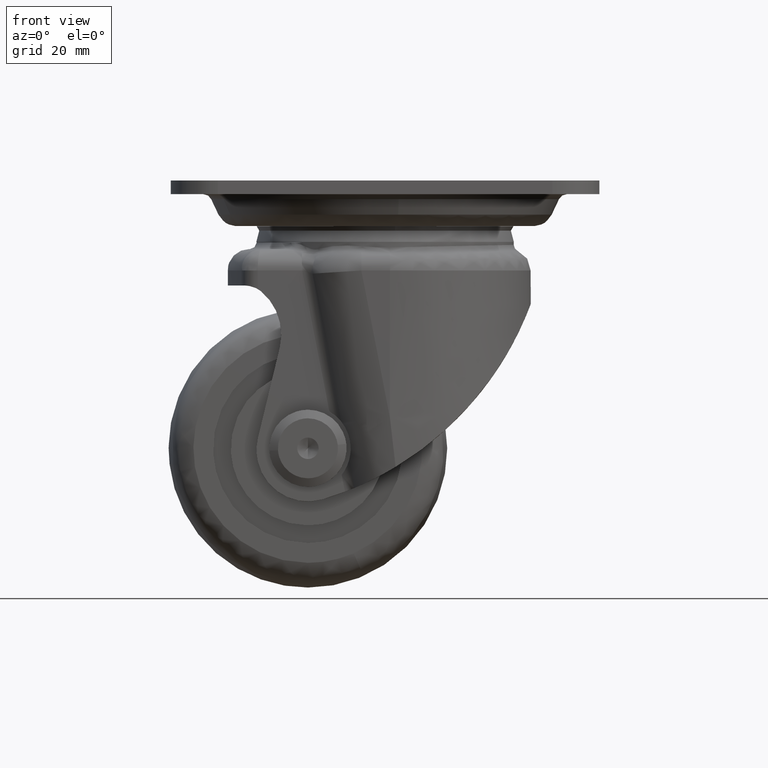
[diagram: clean part render]
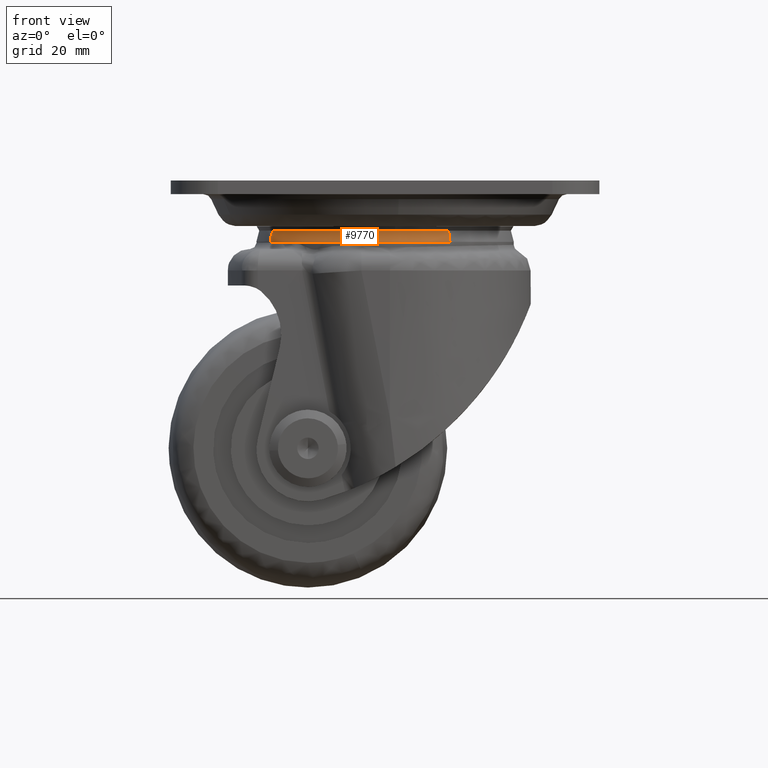
[diagram: same view with one face highlighted and labeled with its STEP entity id]
A machine part, front view. The second image highlights one B-rep face of the part: STEP entity #9770.
In plain terms, the highlighted face is a freeform B-spline surface patch.
Its self-contained STEP definition (entity closure, byte-faithful):
#8623=CARTESIAN_POINT('',(17.522155080071482,-28.369150680218020,-21.214511943242989));
#8624=VERTEX_POINT('',#8623);
#8630=CARTESIAN_POINT('',(-18.450119611879568,-13.618841556985190,-14.222210068228829));
#8631=VERTEX_POINT('',#8630);
#8632=CARTESIAN_POINT('',(17.522155080071482,-28.369150680218020,-21.214511943242986));
#8633=CARTESIAN_POINT('',(12.815073911622482,-30.037867283347744,-20.299548050586608));
#8634=CARTESIAN_POINT('',(7.831115067608019,-30.037867283347751,-19.330764589757401));
#8635=CARTESIAN_POINT('',(-10.251609450910713,-30.037867283347744,-15.815839007795516));
#8636=CARTESIAN_POINT('',(-18.450119611879572,-13.618841556985190,-14.222210068228833));
#8644=(BOUNDED_CURVE()B_SPLINE_CURVE(2,(#8632,#8633,#8634,#8635,#8636),.UNSPECIFIED.,.F.,.U.)B_SPLINE_CURVE_WITH_KNOTS((3,2,3),(0.694149837506889,0.750000000000000,0.922901120406277),.UNSPECIFIED.)CURVE()GEOMETRIC_REPRESENTATION_ITEM()RATIONAL_B_SPLINE_CURVE((0.898370270989290,0.934567464544553,1.0,0.797433737231013,0.875058944776187))REPRESENTATION_ITEM(''));
#8645=EDGE_CURVE('',#8624,#8631,#8644,.T.);
#8995=CARTESIAN_POINT('',(22.680942273216768,-25.950416948612851,-22.217278592617820));
#8996=VERTEX_POINT('',#8995);
#9010=CARTESIAN_POINT('',(22.680942273216772,-25.950416948612851,-22.217278592617816));
#9011=CARTESIAN_POINT('',(20.216403535979293,-27.414007360947743,-21.738220790994404));
#9012=CARTESIAN_POINT('',(17.522155080071482,-28.369150680218020,-21.214511943242986));
#9020=(BOUNDED_CURVE()B_SPLINE_CURVE(2,(#9010,#9011,#9012),.UNSPECIFIED.,.F.,.U.)B_SPLINE_CURVE_WITH_KNOTS((3,3),(0.664086837571461,0.694149837506889),.UNSPECIFIED.)CURVE()GEOMETRIC_REPRESENTATION_ITEM()RATIONAL_B_SPLINE_CURVE((0.867872643618802,0.878886062189562,0.898370270989290))REPRESENTATION_ITEM(''));
#9021=EDGE_CURVE('',#8996,#8624,#9020,.T.);
#9644=CARTESIAN_POINT('',(-17.355926881172810,-13.310685288560920,-11.767984731102899));
#9645=VERTEX_POINT('',#9644);
#9678=CARTESIAN_POINT('',(22.844454189801230,-25.363231642255219,-19.582147231044321));
#9679=VERTEX_POINT('',#9678);
#9693=CARTESIAN_POINT('',(22.844454189801230,-25.363231642255219,-19.582147231044324));
#9694=CARTESIAN_POINT('',(22.927405313401270,-25.918438593163870,-20.851637699059577));
#9695=CARTESIAN_POINT('',(22.680942273216768,-25.950416948612844,-22.217278592617824));
#9703=(BOUNDED_CURVE()B_SPLINE_CURVE(2,(#9693,#9694,#9695),.UNSPECIFIED.,.F.,.U.)B_SPLINE_CURVE_WITH_KNOTS((3,3),(-1.414754485746490,-0.571800007673622),.UNSPECIFIED.)CURVE()GEOMETRIC_REPRESENTATION_ITEM()RATIONAL_B_SPLINE_CURVE((0.943403458383688,0.919505217478118,0.944178191307349))REPRESENTATION_ITEM(''));
#9704=EDGE_CURVE('',#9679,#8996,#9703,.T.);
#9710=CARTESIAN_POINT('',(-17.355926881172802,-13.310685288560913,-11.767984731102906));
#9711=CARTESIAN_POINT('',(-18.152971308367754,-13.602059238726248,-12.866421391930254));
#9712=CARTESIAN_POINT('',(-18.450119611879575,-13.618841556985188,-14.222210068228826));
#9720=(BOUNDED_CURVE()B_SPLINE_CURVE(2,(#9710,#9711,#9712),.UNSPECIFIED.,.F.,.U.)B_SPLINE_CURVE_WITH_KNOTS((3,3),(-1.414754485685338,-0.571800007674423),.UNSPECIFIED.)CURVE()GEOMETRIC_REPRESENTATION_ITEM()RATIONAL_B_SPLINE_CURVE((0.922182353056850,0.898821683948016,0.922939658987138))REPRESENTATION_ITEM(''));
#9721=EDGE_CURVE('',#9645,#8631,#9720,.T.);
#9726=CARTESIAN_POINT('',(22.835589090931137,-25.308083862529813,-19.459269820631636));
#9727=CARTESIAN_POINT('',(-2.007513989501268,-40.061403391161861,-14.630259763916962));
#9728=CARTESIAN_POINT('',(-16.489773484895771,-14.753319528632066,-11.815193686189517));
#9729=CARTESIAN_POINT('',(-16.904249129693468,-14.029013740515774,-11.734627782223683));
#9730=CARTESIAN_POINT('',(-17.277382771203218,-13.281745041405660,-11.662097949637332));
#9731=CARTESIAN_POINT('',(22.945190699435141,-25.946669498932170,-20.846389293095505));
#9732=CARTESIAN_POINT('',(-2.524765400649050,-41.072251818829429,-15.895531352637001));
#9733=CARTESIAN_POINT('',(-17.372448171335567,-15.125582319897260,-13.009434185692175));
#9734=CARTESIAN_POINT('',(-17.797382063183662,-14.383000502858090,-12.926835404431646));
#9735=CARTESIAN_POINT('',(-18.179930790609070,-13.616876363708464,-12.852475464534454));
#9736=CARTESIAN_POINT('',(22.656241423721355,-25.952214759728726,-22.349846018326296));
#9737=CARTESIAN_POINT('',(-2.819158055100029,-41.081029683281216,-17.397929992226103));
#9738=CARTESIAN_POINT('',(-17.670014037407842,-15.128814923552493,-14.511216015425369));
#9739=CARTESIAN_POINT('',(-18.095038745121599,-14.386074403684885,-14.428599581348797));
#9740=CARTESIAN_POINT('',(-18.477669229955648,-13.619786530297450,-14.354223749421246));
#9748=(BOUNDED_SURFACE()B_SPLINE_SURFACE(2,2,((#9726,#9731,#9736),(#9727,#9732,#9737),(#9728,#9733,#9738),(#9729,#9734,#9739),(#9730,#9735,#9740)),.UNSPECIFIED.,.F.,.F.,.U.)B_SPLINE_SURFACE_WITH_KNOTS((3,2,3),(3,3),(0.0,49.771815941872582,51.762686680903379),(0.0,3.013682398502097),.UNSPECIFIED.)GEOMETRIC_REPRESENTATION_ITEM()RATIONAL_B_SPLINE_SURFACE(((0.945912088143343,0.916957886249146,0.946764224206340),(0.668860851932485,0.648387139429254,0.669463403121124),(0.945912088143343,0.916957886249146,0.946764224206340),(0.934830049263575,0.906215066621512,0.935672201941119),(0.924634572648695,0.896331671744475,0.925467540610860)))REPRESENTATION_ITEM('')SURFACE());
#9749=CARTESIAN_POINT('',(22.844454189801230,-25.363231642255226,-19.582147231044324));
#9750=CARTESIAN_POINT('',(16.117339536623458,-29.358194415723396,-18.274528605124466));
#9751=CARTESIAN_POINT('',(8.330637012645379,-29.358194415723400,-16.760946961350150));
#9752=CARTESIAN_POINT('',(-9.342926059332349,-29.358194415723389,-13.325554307854141));
#9753=CARTESIAN_POINT('',(-17.355926881172802,-13.310685288560920,-11.767984731102898));
#9761=(BOUNDED_CURVE()B_SPLINE_CURVE(2,(#9749,#9750,#9751,#9752,#9753),.UNSPECIFIED.,.F.,.U.)B_SPLINE_CURVE_WITH_KNOTS((3,2,3),(0.664086837571462,0.750000000000000,0.922901120406096),.UNSPECIFIED.)CURVE()GEOMETRIC_REPRESENTATION_ITEM()RATIONAL_B_SPLINE_CURVE((0.867872643618802,0.899346469271450,1.0,0.797433737231225,0.875058944776024))REPRESENTATION_ITEM(''));
#9762=EDGE_CURVE('',#9679,#9645,#9761,.T.);
#9763=ORIENTED_EDGE('',*,*,#9762,.T.);
#9764=ORIENTED_EDGE('',*,*,#9721,.T.);
#9765=ORIENTED_EDGE('',*,*,#8645,.F.);
#9766=ORIENTED_EDGE('',*,*,#9021,.F.);
#9767=ORIENTED_EDGE('',*,*,#9704,.F.);
#9768=EDGE_LOOP('',(#9763,#9764,#9765,#9766,#9767));
#9769=FACE_OUTER_BOUND('',#9768,.T.);
#9770=ADVANCED_FACE('',(#9769),#9748,.T.);